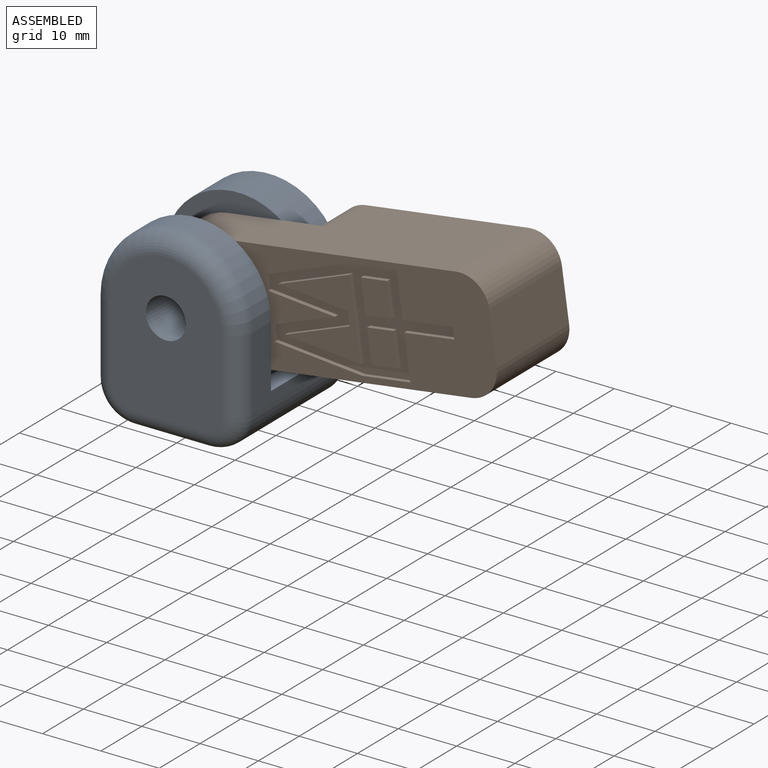
[diagram: assembled view]
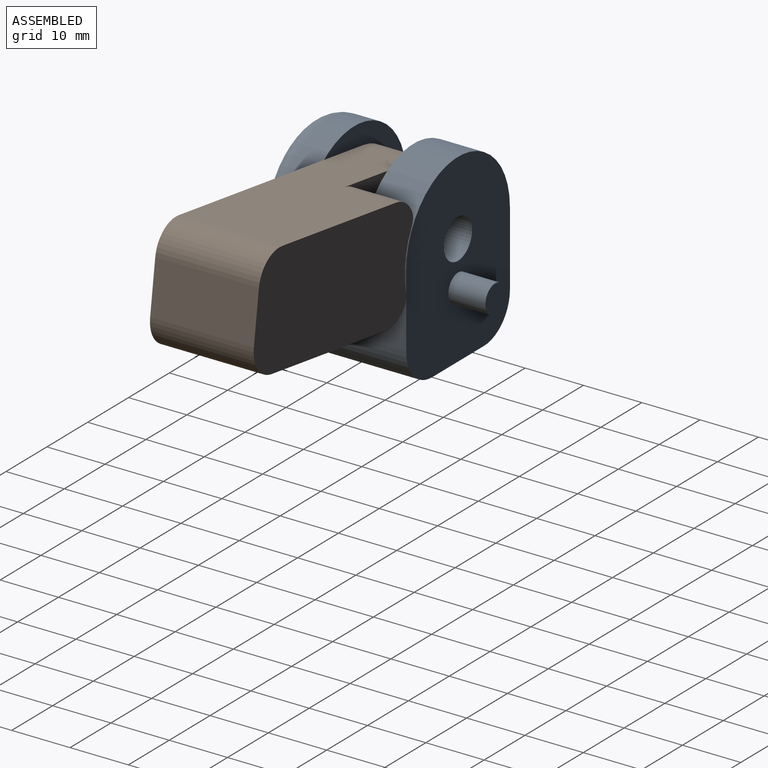
[diagram: assembled view, second angle]
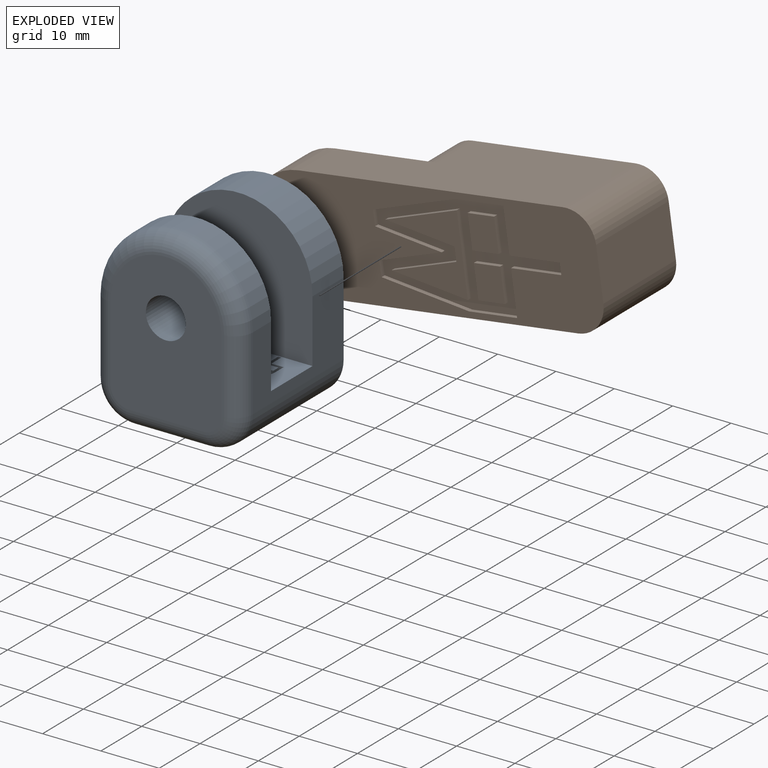
[diagram: exploded view]
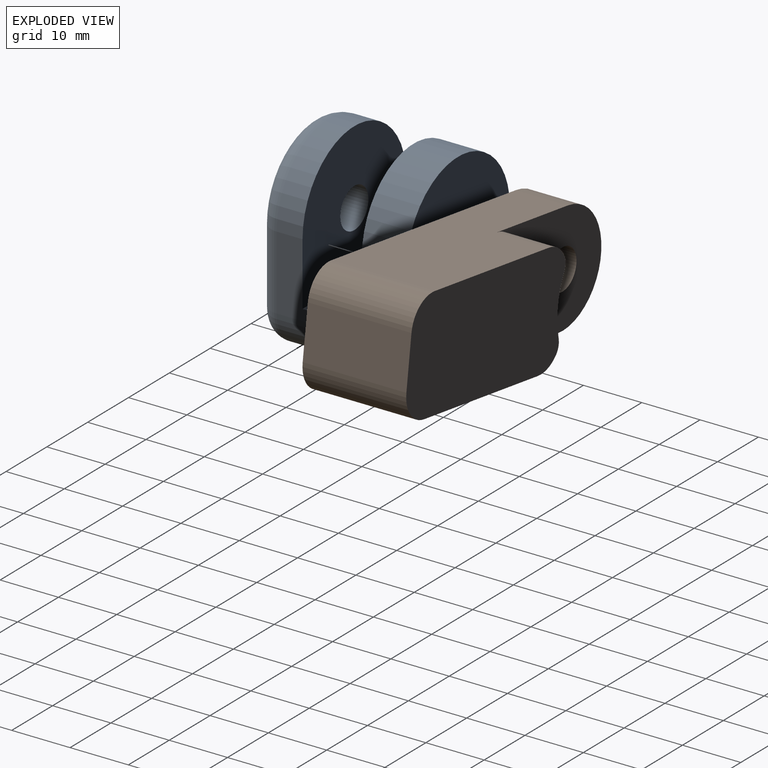
[diagram: exploded view, second angle]
ASSEMBLY  parts=2 mates=2
PART A: 55 faces, bbox 27.5x31.8x33.3 mm
  f0: plane 12.7x10.16mm, normal (0,0,1), area 103.3mm2, adj f2,f5,f9,f11,f32,f33,f34,f35
  f1: plane 25.4x19.05mm, normal (0,-1,0), area 403.7mm2, adj f13,f16,f17,f18,f19,f21,f23
  f2: plane 25.4x23.5mm, normal (0,-1,0), area 443.6mm2, adj f0,f5,f6,f7,f9,f10
  f3: plane 22.23x12.7mm, normal (-1,0,0), area 282.3mm2, adj f7,f8,f10,f12,f16,f22
  f4: plane 22.23x12.7mm, normal (0,0,-1), area 282.3mm2, adj f8,f18,f20,f22
  f5: plane 22.23x12.7mm, normal (1,0,0), area 172.6mm2, adj f0,f2,f7,f8,f11,f12,f19,f20
  f6: cylinder r=3.43mm len=7.62mm, axis (0,1,0), area 164.2mm2, adj f2,f8
  f7: cylinder r=12.7mm len=25.4mm, axis (0,1,0), area 304mm2, adj f2,f3,f5,f8
  f8: plane 31.75x25.4mm, normal (0,1,0), area 665.2mm2, adj f3,f4,f5,f6,f7,f14,f20,f22
  f9: cylinder r=10.79mm len=10.8mm, axis (0,1,0), area 172.3mm2, adj f0,f2,f10,f11
  f10: cylinder r=0.95mm len=10.16mm, axis (0,1,0), area 30.4mm2, adj f2,f3,f9,f11
  f11: plane 25.4x23.5mm, normal (0,1,0), area 443.6mm2, adj f0,f5,f9,f10,f12,f13
  f12: cylinder r=12.7mm len=25.4mm, axis (0,1,0), area 177.3mm2, adj f3,f5,f11,f17
  f13: cylinder r=3.43mm len=7.62mm, axis (0,1,0), area 164.2mm2, adj f1,f11
  f14: cylinder r=2.38mm len=6.35mm, axis (0,-1,0), area 95mm2, adj f8,f15
  f15: plane 4.76x4.76mm, normal (0,1,0), area 17.8mm2, adj f14
  f16: cylinder r=3.17mm len=12.7mm, axis (0,0,1), area 63.3mm2, adj f1,f3,f17,f23
  f17: torus R=9.53mm, axis (0,-1,0), area 180.9mm2, adj f1,f12,f16,f19
  f18: cylinder r=3.17mm len=12.7mm, axis (-1,0,0), area 63.3mm2, adj f1,f4,f21,f23
  f19: cylinder r=3.17mm len=12.7mm, axis (0,0,-1), area 63.3mm2, adj f1,f5,f17,f21
  f20: cylinder r=6.35mm len=22.23mm, axis (0,-1,0), area 221.7mm2, adj f4,f5,f8,f21
  f21: torus R=3.17mm, axis (0,-1,0), area 40.7mm2, adj f1,f18,f19,f20
  f22: cylinder r=6.35mm len=22.23mm, axis (0,1,0), area 221.7mm2, adj f3,f4,f8,f23
  f23: torus R=3.17mm, axis (0,-1,0), area 40.7mm2, adj f1,f16,f18,f22
  f24: plane 3.58x0.83mm, normal (-0.97,-0.22,0), area 2.8mm2, adj f25,f50,f51,f54
  f25: plane 3.8x0.76mm, normal (0,1,0), area 2.9mm2, adj f24,f26,f51,f54
  f26: plane 3.58x0.83mm, normal (0.97,-0.22,0), area 2.8mm2, adj f25,f27,f51,f54
  f27: plane 3.25x0.76mm, normal (-0.97,-0.22,0), area 2.5mm2, adj f26,f28,f51,f54
  f28: plane 0.76x0.64mm, normal (0,-1,0), area 0.5mm2, adj f27,f50,f51,f54
  f29: plane 1.59x0.76mm, normal (0,-1,0), area 1.2mm2, adj f30,f47,f51,f53
  f30: plane 1.28x0.76mm, normal (-1,0,0), area 1mm2, adj f29,f31,f51,f53
  f31: plane 1.59x0.76mm, normal (0,1,0), area 1.2mm2, adj f30,f47,f51,f53
  f32: plane 0.76x0.7mm, normal (0,1,0), area 0.5mm2, adj f0,f33,f48,f51
  f33: plane 3.13x0.76mm, normal (-0.97,0.22,0), area 2.4mm2, adj f0,f32,f34,f51
  f34: plane 3.13x0.76mm, normal (0.97,0.22,0), area 2.4mm2, adj f0,f33,f35,f51
  f35: plane 0.76x0.7mm, normal (0,1,0), area 0.5mm2, adj f0,f34,f36,f51
  f36: plane 4.12x0.95mm, normal (-0.97,0.22,0), area 3.2mm2, adj f0,f35,f37,f51
  f37: plane 2.33x0.76mm, normal (-1,0,0), area 1.8mm2, adj f0,f36,f38,f51
  f38: plane 2.11x0.76mm, normal (0,-1,0), area 1.6mm2, adj f0,f37,f39,f51
  f39: plane 2.44x0.76mm, normal (-1,0,0), area 1.9mm2, adj f0,f38,f40,f51
  f40: plane 0.76x0.52mm, normal (0,-1,0), area 0.4mm2, adj f0,f39,f41,f51
  f41: plane 2.44x0.76mm, normal (1,0,0), area 1.9mm2, adj f0,f40,f42,f51
  f42: plane 2.11x0.76mm, normal (0,-1,0), area 1.6mm2, adj f0,f41,f43,f51
  f43: plane 2.33x0.76mm, normal (1,0,0), area 1.8mm2, adj f0,f42,f48,f51
  f44: plane 1.28x0.76mm, normal (-1,0,0), area 1mm2, adj f45,f49,f51,f52
  f45: plane 1.59x0.76mm, normal (0,1,0), area 1.2mm2, adj f44,f46,f51,f52
  f46: plane 1.28x0.76mm, normal (1,0,0), area 1mm2, adj f45,f49,f51,f52
  f47: plane 1.28x0.76mm, normal (1,0,0), area 1mm2, adj f29,f31,f51,f53
  f48: plane 4.12x0.95mm, normal (0.97,0.22,0), area 3.2mm2, adj f0,f32,f43,f51
  f49: plane 1.59x0.76mm, normal (0,-1,0), area 1.2mm2, adj f44,f46,f51,f52
  f50: plane 3.25x0.76mm, normal (0.97,-0.22,0), area 2.5mm2, adj f24,f28,f51,f54
  f51: plane 8.89x4.74mm, normal (0,0,1), area 15.5mm2, adj f24,f25,f26,f27,f28,f29,f30,f31
  f52: plane 1.59x1.28mm, normal (0,0,1), area 2mm2, adj f44,f45,f46,f49
  f53: plane 1.59x1.28mm, normal (0,0,1), area 2mm2, adj f29,f30,f31,f47
  f54: plane 3.8x3.58mm, normal (0,0,1), area 6.1mm2, adj f24,f25,f26,f27,f28,f50
PART B: 48 faces, bbox 60.3x17.8x19.1 mm
  f0: plane 60.33x19.05mm, normal (0,-1,0), area 734.7mm2, adj f2,f3,f4,f5,f6,f7,f8,f23
  f1: plane 27.08x19.05mm, normal (0,1,0), area 367.1mm2, adj f2,f3,f4,f5,f9,f11,f12,f13
  f2: plane 45.72x17.78mm, normal (0,0,1), area 656.9mm2, adj f0,f1,f3,f8,f10,f13
  f3: cylinder r=9.53mm len=19.05mm, axis (0,1,0), area 266mm2, adj f0,f1,f2,f4
  f4: plane 45.72x17.78mm, normal (0,0,-1), area 656.9mm2, adj f0,f1,f3,f7,f10,f14
  f5: cylinder r=3.43mm len=8.89mm, axis (0,1,0), area 191.5mm2, adj f0,f1
  f6: plane 17.78x8.89mm, normal (1,0,0), area 158.1mm2, adj f0,f7,f8,f10
  f7: cylinder r=5.08mm len=17.78mm, axis (0,-1,0), area 141.9mm2, adj f0,f4,f6,f10
  f8: cylinder r=5.08mm len=17.78mm, axis (0,1,0), area 141.9mm2, adj f0,f2,f6,f10
  f9: cylinder r=13.97mm len=9.39mm, axis (0,-1,0), area 85.1mm2, adj f1,f10,f11,f12
  f10: plane 37.88x19.05mm, normal (0,1,0), area 695.1mm2, adj f2,f4,f6,f7,f8,f9,f11,f12
  f11: cylinder r=5.08mm len=8.89mm, axis (0,-1,0), area 6.2mm2, adj f1,f9,f10,f16
  f12: cylinder r=5.08mm len=8.89mm, axis (0,-1,0), area 6.2mm2, adj f1,f9,f10,f15
  f13: cylinder r=5.08mm len=8.89mm, axis (0,1,0), area 43.8mm2, adj f1,f2,f10,f15
  f14: cylinder r=5.08mm len=8.89mm, axis (0,-1,0), area 43.8mm2, adj f1,f4,f10,f16
  f15: cylinder r=2.54mm len=8.89mm, axis (0,-1,0), area 18.2mm2, adj f1,f10,f12,f13
  f16: cylinder r=2.54mm len=8.89mm, axis (0,1,0), area 18.2mm2, adj f1,f10,f11,f14
  f17: plane 4.57x0.76mm, normal (0,0,-1), area 3.5mm2, adj f18,f43,f44,f47
  f18: plane 5.67x0.76mm, normal (-1,0,0), area 4.3mm2, adj f17,f19,f44,f47
  f19: plane 4.57x0.76mm, normal (0,0,1), area 3.5mm2, adj f18,f43,f44,f47
  f20: plane 4.57x0.76mm, normal (0,0,-1), area 3.5mm2, adj f21,f40,f44,f46
  f21: plane 5.67x0.76mm, normal (-1,0,0), area 4.3mm2, adj f20,f22,f44,f46
  f22: plane 4.57x0.76mm, normal (0,0,1), area 3.5mm2, adj f21,f40,f44,f46
  f23: plane 2.5x0.76mm, normal (1,0,0.02), area 1.9mm2, adj f0,f24,f41,f44
  f24: plane 14.68x3.39mm, normal (0.22,0,0.97), area 11.5mm2, adj f0,f23,f25,f44
  f25: plane 8.31x0.76mm, normal (0,0,1), area 6.3mm2, adj f0,f24,f26,f44
  f26: plane 7.54x0.76mm, normal (-1,0,0), area 5.7mm2, adj f0,f25,f27,f44
  f27: plane 8.72x0.76mm, normal (0,0,1), area 6.6mm2, adj f0,f26,f28,f44
  f28: plane 1.87x0.76mm, normal (-1,0,0), area 1.4mm2, adj f0,f27,f29,f44
  f29: plane 8.72x0.76mm, normal (0,0,-1), area 6.6mm2, adj f0,f28,f30,f44
  f30: plane 7.54x0.76mm, normal (-1,0,0), area 5.7mm2, adj f0,f29,f31,f44
  f31: plane 8.31x0.76mm, normal (0,0,-1), area 6.3mm2, adj f0,f30,f32,f44
  f32: plane 14.73x3.4mm, normal (0.22,0,-0.97), area 11.5mm2, adj f0,f31,f33,f44
  f33: plane 2.49x0.76mm, normal (1,0,0), area 1.9mm2, adj f0,f32,f34,f44
  f34: plane 11.18x2.58mm, normal (0.22,0,0.97), area 8.7mm2, adj f0,f33,f41,f44
  f35: plane 13.56x0.76mm, normal (1,0,0), area 10.3mm2, adj f36,f42,f44,f45
  f36: plane 12.8x2.95mm, normal (-0.22,0,-0.97), area 10mm2, adj f35,f37,f44,f45
  f37: plane 11.62x2.68mm, normal (-0.22,0,0.97), area 9.1mm2, adj f36,f38,f44,f45
  f38: plane 2.29x0.76mm, normal (-1,0,0), area 1.7mm2, adj f37,f39,f44,f45
  f39: plane 11.62x2.68mm, normal (-0.22,0,-0.97), area 9.1mm2, adj f38,f42,f44,f45
  f40: plane 5.67x0.76mm, normal (1,0,0), area 4.3mm2, adj f20,f22,f44,f46
  f41: plane 11.18x2.58mm, normal (0.22,0,-0.97), area 8.7mm2, adj f0,f23,f34,f44
  f42: plane 12.8x2.95mm, normal (-0.22,0,0.97), area 10mm2, adj f35,f39,f44,f45
  f43: plane 5.67x0.76mm, normal (1,0,0), area 4.3mm2, adj f17,f19,f44,f47
  f44: plane 31.75x16.94mm, normal (0,-1,0), area 197.8mm2, adj f17,f18,f19,f20,f21,f22,f23,f24
  f45: plane 13.56x12.8mm, normal (0,-1,0), area 78mm2, adj f35,f36,f37,f38,f39,f42
  f46: plane 5.67x4.57mm, normal (0,-1,0), area 25.9mm2, adj f20,f21,f22,f40
  f47: plane 5.67x4.57mm, normal (0,-1,0), area 25.9mm2, adj f17,f18,f19,f43
PLACE A t=(-7.02,5.61,-1.38)mm fixed
PLACE B rot(axis=(0,-1,0),8deg) t=(-7.02,-2.64,-1.38)mm
MATE planar B.f0 <-> A.f12  axis (0,-1,0) through (13,-11.53,1.45)mm
MATE cylindrical B.f3 <-> A.f13  axis (0,-1,0) through (-7.02,-11.53,-1.38)mm
